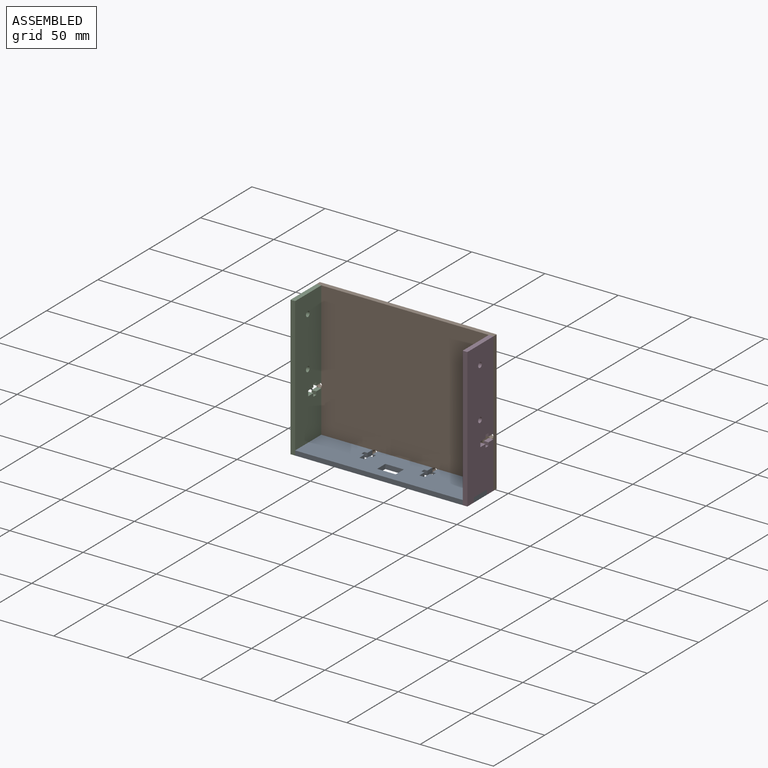
[diagram: assembled view]
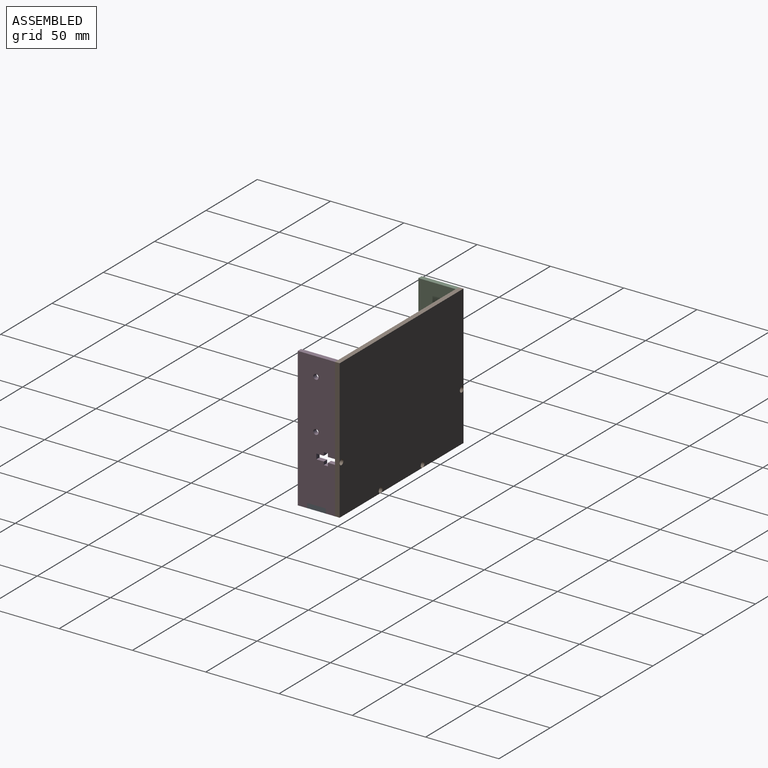
[diagram: assembled view, second angle]
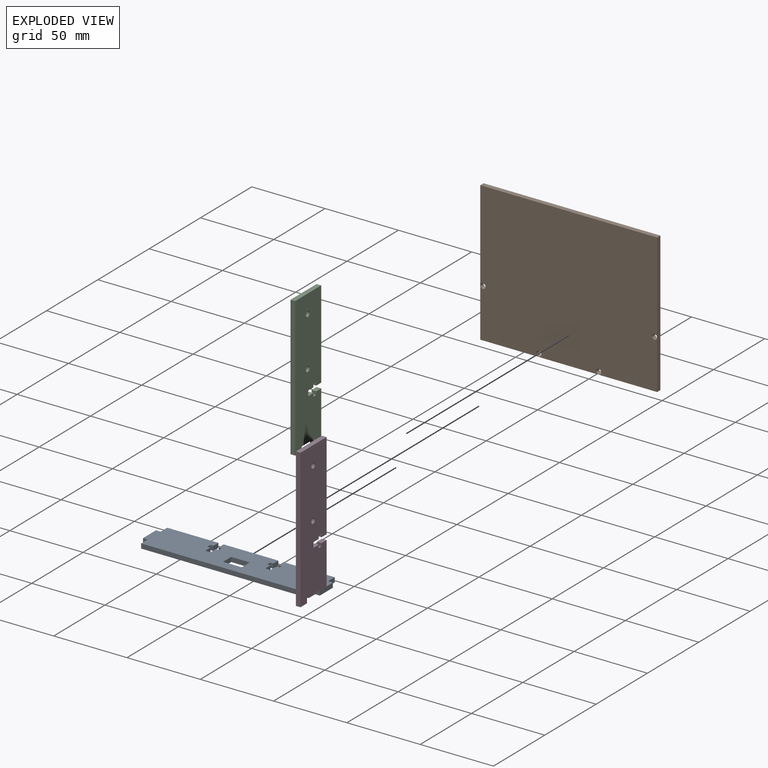
[diagram: exploded view]
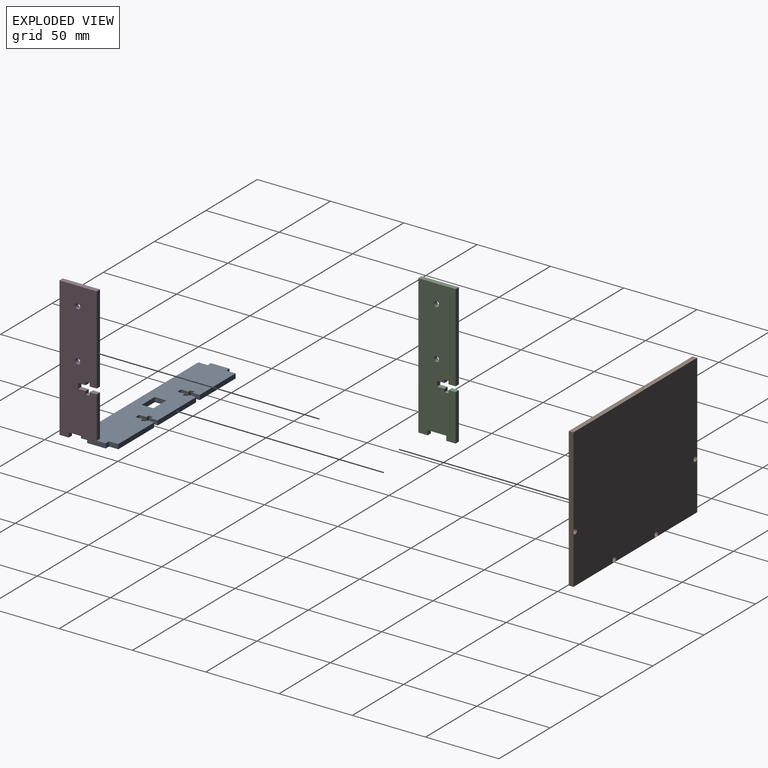
[diagram: exploded view, second angle]
ASSEMBLY  parts=4 mates=9
PART A: 42 faces, bbox 120.7x3.2x25.4 mm
  f0: plane 5.08x3.18mm, normal (1,0,0), area 16.1mm2, adj f1,f39,f40,f41
  f1: plane 3.56x3.18mm, normal (0,0,-1), area 11.3mm2, adj f0,f2,f40,f41
  f2: plane 5.08x3.18mm, normal (-1,0,0), area 16.1mm2, adj f1,f3,f40,f41
  f3: plane 3.18x2.19mm, normal (0,0,-1), area 7mm2, adj f2,f4,f40,f41
  f4: plane 3.18x2.78mm, normal (-1,0,0), area 8.8mm2, adj f3,f5,f40,f41
  f5: plane 3.18x2.19mm, normal (0,0,1), area 7mm2, adj f4,f6,f40,f41
  f6: plane 4.84x3.18mm, normal (-1,0,0), area 15.4mm2, adj f5,f7,f40,f41
  f7: plane 34.93x3.18mm, normal (0,0,-1), area 110.9mm2, adj f6,f8,f40,f41
  f8: plane 6.35x3.18mm, normal (1,0,0), area 20.2mm2, adj f7,f9,f40,f41
  f9: plane 3.18x3.18mm, normal (0,0,-1), area 10.1mm2, adj f8,f10,f40,f41
  f10: plane 12.7x3.18mm, normal (1,0,0), area 40.3mm2, adj f9,f11,f40,f41
  f11: plane 3.18x3.18mm, normal (0,0,1), area 10.1mm2, adj f10,f12,f40,f41
  f12: plane 6.35x3.18mm, normal (1,0,0), area 20.2mm2, adj f11,f13,f40,f41
  f13: plane 114.3x3.18mm, normal (0,0,1), area 362.9mm2, adj f12,f14,f40,f41
  f14: plane 6.35x3.18mm, normal (-1,0,0), area 20.2mm2, adj f13,f15,f40,f41
  f15: plane 3.18x3.18mm, normal (0,0,1), area 10.1mm2, adj f14,f16,f40,f41
  f16: plane 12.7x3.18mm, normal (-1,0,0), area 40.3mm2, adj f15,f17,f40,f41
  f17: plane 3.18x3.18mm, normal (0,0,-1), area 10.1mm2, adj f16,f18,f40,f41
  f18: plane 6.35x3.18mm, normal (-1,0,0), area 20.2mm2, adj f17,f19,f40,f41
  f19: plane 34.93x3.18mm, normal (0,0,-1), area 110.9mm2, adj f18,f20,f40,f41
  f20: plane 4.84x3.18mm, normal (1,0,0), area 15.4mm2, adj f19,f21,f40,f41
  f21: plane 3.18x2.19mm, normal (0,0,1), area 7mm2, adj f20,f22,f40,f41
  f22: plane 3.18x2.78mm, normal (1,0,0), area 8.8mm2, adj f21,f23,f40,f41
  f23: plane 3.18x2.19mm, normal (0,0,-1), area 7mm2, adj f22,f24,f40,f41
  f24: plane 5.08x3.18mm, normal (1,0,0), area 16.1mm2, adj f23,f25,f40,f41
  f25: plane 3.56x3.18mm, normal (0,0,-1), area 11.3mm2, adj f24,f26,f40,f41
  f26: plane 5.08x3.18mm, normal (-1,0,0), area 16.1mm2, adj f25,f27,f40,f41
  f27: plane 3.18x2.19mm, normal (0,0,-1), area 7mm2, adj f26,f28,f40,f41
  f28: plane 3.18x2.78mm, normal (-1,0,0), area 8.8mm2, adj f27,f29,f40,f41
  f29: plane 3.18x2.19mm, normal (0,0,1), area 7mm2, adj f28,f30,f40,f41
  f30: plane 4.84x3.18mm, normal (-1,0,0), area 15.4mm2, adj f29,f31,f40,f41
  f31: plane 37.34x3.18mm, normal (0,0,-1), area 118.5mm2, adj f30,f32,f40,f41
  f32: plane 4.84x3.18mm, normal (1,0,0), area 15.4mm2, adj f31,f33,f40,f41
  f33: plane 3.18x2.19mm, normal (0,0,1), area 7mm2, adj f32,f34,f40,f41
  f34: plane 3.18x2.78mm, normal (1,0,0), area 8.8mm2, adj f33,f39,f40,f41
  f35: plane 12.7x3.18mm, normal (0,0,1), area 40.3mm2, adj f36,f38,f40,f41
  f36: plane 7.94x3.18mm, normal (1,0,0), area 25.2mm2, adj f35,f37,f40,f41
  f37: plane 12.7x3.18mm, normal (0,0,-1), area 40.3mm2, adj f36,f38,f40,f41
  f38: plane 7.94x3.18mm, normal (-1,0,0), area 25.2mm2, adj f35,f37,f40,f41
  f39: plane 3.18x2.19mm, normal (0,0,-1), area 7mm2, adj f0,f34,f40,f41
  f40: plane 120.65x25.4mm, normal (0,-1,0), area 2768.4mm2, adj f0,f1,f2,f3,f4,f5,f6,f7
  f41: plane 120.65x25.4mm, normal (0,1,0), area 2768.4mm2, adj f0,f1,f2,f3,f4,f5,f6,f7
PART B: 10 faces, bbox 120.7x3.2x95.3 mm
  f0: plane 95.25x3.18mm, normal (1,0,0), area 302.4mm2, adj f1,f3,f4,f5
  f1: plane 120.65x3.18mm, normal (0,0,1), area 383.1mm2, adj f0,f2,f4,f5
  f2: plane 95.25x3.18mm, normal (-1,0,0), area 302.4mm2, adj f1,f3,f4,f5
  f3: plane 120.65x3.18mm, normal (0,0,-1), area 383.1mm2, adj f0,f2,f4,f5
  f4: plane 120.65x95.25mm, normal (0,-1,0), area 11452.2mm2, adj f0,f1,f2,f3,f6,f7,f8,f9
  f5: plane 120.65x95.25mm, normal (0,1,0), area 11452.2mm2, adj f0,f1,f2,f3,f6,f7,f8,f9
  f6: cylinder r=1.78mm len=3.56mm, axis (0,-1,0), area 35.5mm2, adj f4,f5
  f7: cylinder r=1.78mm len=3.56mm, axis (0,-1,0), area 35.5mm2, adj f4,f5
  f8: cylinder r=1.78mm len=3.56mm, axis (0,-1,0), area 35.5mm2, adj f4,f5
  f9: cylinder r=1.78mm len=3.56mm, axis (0,-1,0), area 35.5mm2, adj f4,f5
PART C: 24 faces, bbox 95.3x3.2x25.4 mm
  f0: plane 3.18x3.18mm, normal (0,0,1), area 10.1mm2, adj f1,f21,f22,f23
  f1: plane 6.35x3.18mm, normal (-1,0,0), area 20.2mm2, adj f0,f2,f22,f23
  f2: plane 31.75x3.18mm, normal (0,0,-1), area 100.8mm2, adj f1,f3,f22,f23
  f3: plane 4.84x3.18mm, normal (1,0,0), area 15.4mm2, adj f2,f4,f22,f23
  f4: plane 3.18x2.19mm, normal (0,0,1), area 7mm2, adj f3,f5,f22,f23
  f5: plane 3.18x2.78mm, normal (1,0,0), area 8.8mm2, adj f4,f6,f22,f23
  f6: plane 3.18x2.19mm, normal (0,0,-1), area 7mm2, adj f5,f7,f22,f23
  f7: plane 5.08x3.18mm, normal (1,0,0), area 16.1mm2, adj f6,f8,f22,f23
  f8: plane 3.56x3.18mm, normal (0,0,-1), area 11.3mm2, adj f7,f9,f22,f23
  f9: plane 5.08x3.18mm, normal (-1,0,0), area 16.1mm2, adj f8,f10,f22,f23
  f10: plane 3.18x2.19mm, normal (0,0,-1), area 7mm2, adj f9,f11,f22,f23
  f11: plane 3.18x2.78mm, normal (-1,0,0), area 8.8mm2, adj f10,f12,f22,f23
  f12: plane 3.18x2.19mm, normal (0,0,1), area 7mm2, adj f11,f13,f22,f23
  f13: plane 4.84x3.18mm, normal (-1,0,0), area 15.4mm2, adj f12,f14,f22,f23
  f14: plane 59.94x3.18mm, normal (0,0,-1), area 190.3mm2, adj f13,f15,f22,f23
  f15: plane 25.4x3.18mm, normal (1,0,0), area 80.6mm2, adj f14,f16,f22,f23
  f16: plane 95.25x3.18mm, normal (0,0,1), area 302.4mm2, adj f15,f17,f22,f23
  f17: plane 6.35x3.18mm, normal (-1,0,0), area 20.2mm2, adj f16,f18,f22,f23
  f18: plane 3.18x3.18mm, normal (0,0,-1), area 10.1mm2, adj f17,f21,f22,f23
  f19: cylinder r=1.78mm len=3.56mm, axis (0,1,0), area 35.5mm2, adj f22,f23
  f20: cylinder r=1.78mm len=3.56mm, axis (0,1,0), area 35.5mm2, adj f22,f23
  f21: plane 12.7x3.18mm, normal (-1,0,0), area 40.3mm2, adj f0,f18,f22,f23
  f22: plane 95.25x25.4mm, normal (0,-1,0), area 2301.8mm2, adj f0,f1,f2,f3,f4,f5,f6,f7
  f23: plane 95.25x25.4mm, normal (0,1,0), area 2301.8mm2, adj f0,f1,f2,f3,f4,f5,f6,f7
PART D: same geometry as C
PLACE A rot(axis=(1,0,0),90deg) t=(-16.22,-37.15,-39.92)mm
PLACE B t=(-16.22,-4.37,6.11)mm fixed
PLACE C rot(axis=(0.58,-0.58,0.58),120deg) t=(-74.96,-38.57,3.39)mm
PLACE D rot(axis=(0.58,-0.58,0.58),120deg) t=(42.52,-38.57,3.39)mm
MATE planar C.f20 <-> A.f16  axis (-1,0,0) through (-76.54,-19,7.06)mm
MATE planar B.f2 <-> C.f23  axis (-1,0,0) through (-76.54,-5.96,6.11)mm
MATE planar D.f16 <-> A.f13  axis (0,-1,0) through (42.52,-31.36,6.11)mm
MATE planar D.f17 <-> A.f40  axis (0,0,-1) through (42.52,-28.18,-41.51)mm
MATE planar A.f40 <-> B.f3  axis (0,0,-1) through (-21.87,-21.04,-41.51)mm
MATE planar C.f16 <-> A.f13  axis (0,-1,0) through (-74.96,-31.36,6.11)mm
MATE planar A.f10 <-> D.f22  axis (1,0,0) through (44.11,-18.66,-39.92)mm
MATE planar A.f40 <-> C.f1  axis (0,0,-1) through (-16.24,-18.83,-41.51)mm
MATE planar A.f31 <-> B.f4  axis (0,1,0) through (-16.22,-5.96,-39.92)mm
